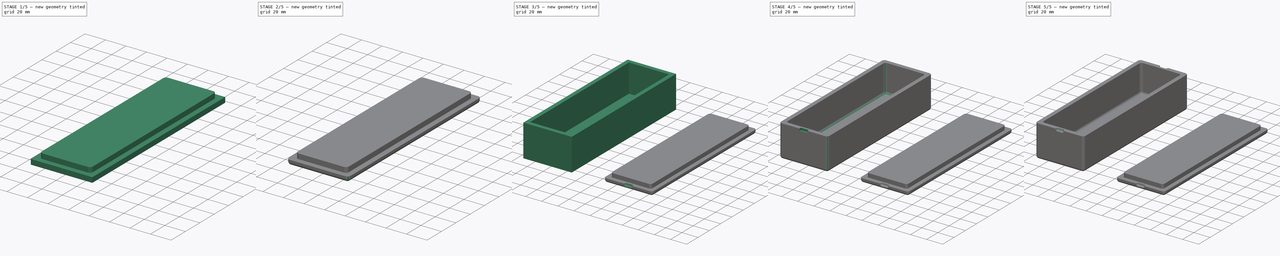
[diagram: build sequence overview — one tinted view per stage of 5, left to right]
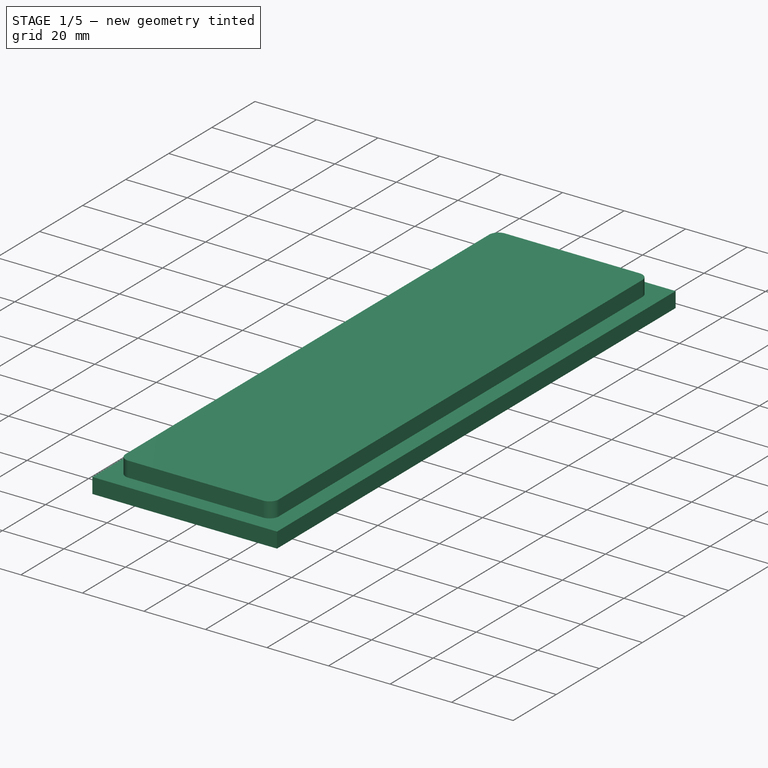
[diagram: stage 1 of 5 — iso view after this stage's code; geometry added in this stage tinted green]
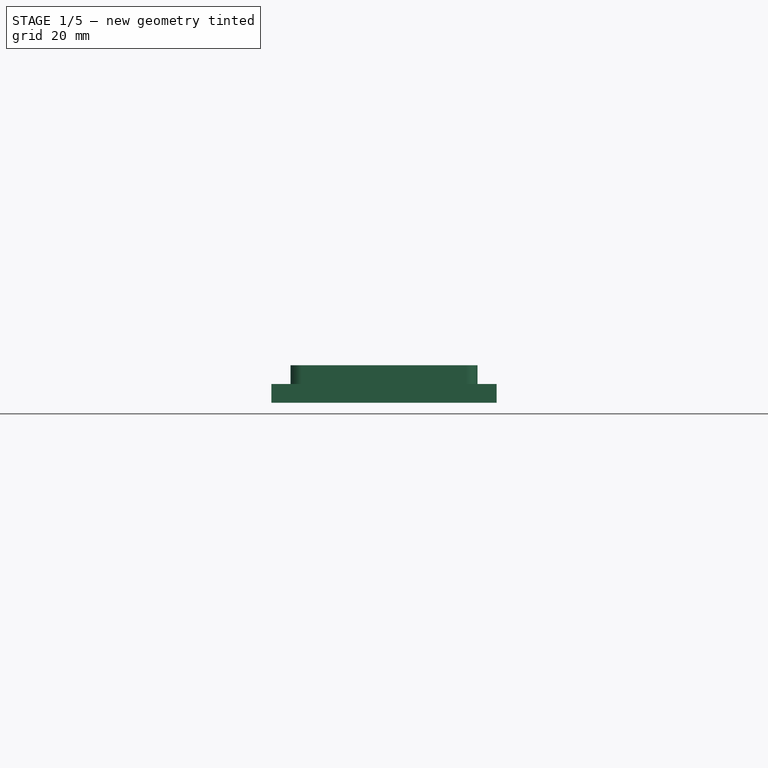
[diagram: stage 1 of 5 — front view after this stage's code; geometry added in this stage tinted green]
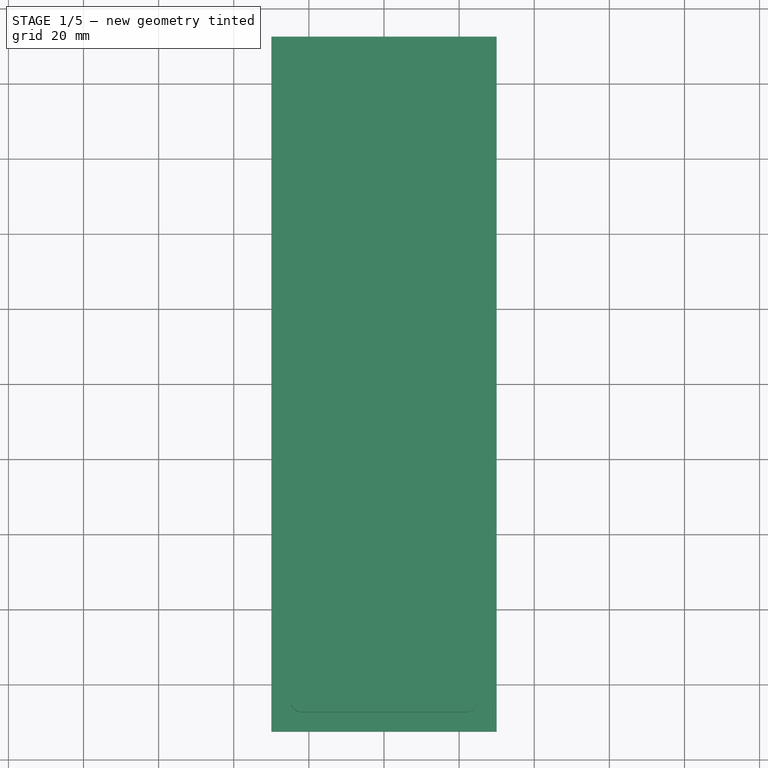
[diagram: stage 1 of 5 — top view after this stage's code; geometry added in this stage tinted green]
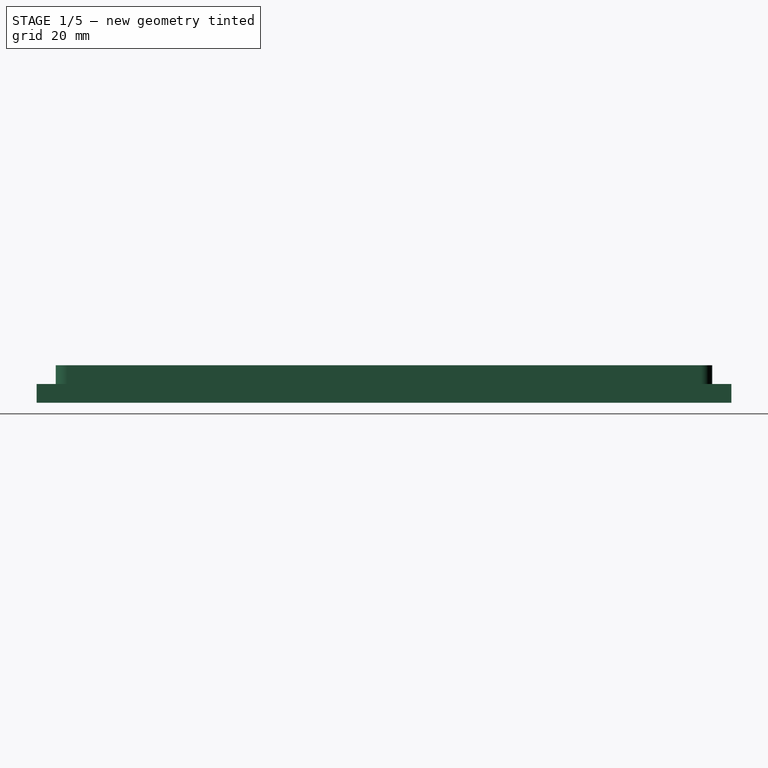
[diagram: stage 1 of 5 — right view after this stage's code; geometry added in this stage tinted green]
FCSTD DOCUMENT  (FreeCAD 1.0R39285 (Git))
Label: BookmarkBox
License: All rights reserved
LicenseURL: https://en.wikipedia.org/wiki/All_rights_reserved
objects: Sketcher::SketchObject×8, PartDesign::Fillet×8, PartDesign::Pocket×5, PartDesign::Pad×3, PartDesign::Body×2
note: 66 computed .brp shape members not serialized (recipe doc carries the construction recipe); baked Part::Feature solids carry a one-line shape summary decoded from their .brp

FEATURE [PartDesign::Body] Body  label="Box"
  AllowCompound = false
  Group = -> [Sketch001,Pad,Sketch,Pocket,Fillet,Fillet001,Sketch002,Pocket001,Fillet002,Sketch003,Pocket002,Fillet003]
  Origin = -> Origin
  Tip = -> Fillet003
FEATURE [Sketcher::SketchObject] Sketch004
  ArcFitTolerance = 1e-06
  AttachmentSupport = -> [XY_Plane001]
  FullyConstrained = true
  MakeInternals = false
  MapMode = 5
  sketch-geometry (5):
    g0: LineSegment StartX=70 StartY=92.5 StartZ=0 EndX=70 EndY=-92.5 EndZ=0
    g1: LineSegment StartX=70 StartY=-92.5 StartZ=0 EndX=130 EndY=-92.5 EndZ=0
    g2: LineSegment StartX=130 StartY=-92.5 StartZ=0 EndX=130 EndY=92.5 EndZ=0
    g3: LineSegment StartX=130 StartY=92.5 StartZ=0 EndX=70 EndY=92.5 EndZ=0
    g4: GeomPoint [constr] X=100 Y=0 Z=0
  constraints (13):
    c: Coincident(g0,g1)
    c: Coincident(g1,g2)
    c: Coincident(g2,g3)
    c: Coincident(g3,g0)
    c: Vertical(g0)
    c: Vertical(g2)
    c: Horizontal(g1)
    c: Horizontal(g3)
    c: Symmetric(g2,g0,g4)
    c: PointOnObject(g4,g-1)
    c: DistanceY(g2,g2) = 185
    c: DistanceX(g1,g1) = 60
    c: Distance(g4,g-2) = 100
FEATURE [PartDesign::Pad] Pad001
  Direction = (0,0,1)
  Length = 5
  Length2 = 10
  Profile = -> Sketch004
  ReferenceAxis = -> Sketch004 [N_Axis]
  Refine = true
  Suppressed = false
  Type = 0
FEATURE [Sketcher::SketchObject] Sketch005
  ArcFitTolerance = 1e-06
  AttachmentSupport = -> [Pad001]
  ExternalGeometry = -> [Pad001]
  FullyConstrained = true
  MakeInternals = false
  MapMode = 5
  Placement = pos=(0,0,5) rot=(0,0,1;0rad)
  sketch-geometry (5):
    g0: LineSegment StartX=75.1 StartY=87.4 StartZ=0 EndX=75.1 EndY=-87.4 EndZ=0
    g1: LineSegment StartX=75.1 StartY=-87.4 StartZ=0 EndX=124.9 EndY=-87.4 EndZ=0
    g2: LineSegment StartX=124.9 StartY=-87.4 StartZ=0 EndX=124.9 EndY=87.4 EndZ=0
    g3: LineSegment StartX=124.9 StartY=87.4 StartZ=0 EndX=75.1 EndY=87.4 EndZ=0
    g4: GeomPoint [constr] X=100 Y=-1.16e-14 Z=0
  constraints (13):
    c: Coincident(g0,g1)
    c: Coincident(g1,g2)
    c: Coincident(g2,g3)
    c: Coincident(g3,g0)
    c: Vertical(g0)
    c: Vertical(g2)
    c: Horizontal(g1)
    c: Horizontal(g3)
    c: Symmetric(g2,g0,g4)
    c: Distance(g-5,g2) = 5.1
    c: Distance(g-6,g1) = 5.1
    c: Distance(g-4,g0) = 5.1
    c: Distance(g-3,g3) = 5.1
FEATURE [PartDesign::Pad] Pad002
  BaseFeature = -> Pad001
  Direction = (0,0,1)
  Length = 5
  Length2 = 10
  Profile = -> Sketch005
  ReferenceAxis = -> Sketch005 [N_Axis]
  Refine = true
  Suppressed = false
  Type = 0
FEATURE [PartDesign::Fillet] Fillet004
  Base = -> Pad002 [Edge18,Edge20,Edge22,Edge17]
  BaseFeature = -> Pad002
  Radius = 3
  Refine = true
  SupportTransform = false
  Suppressed = false
  UseAllEdges = false
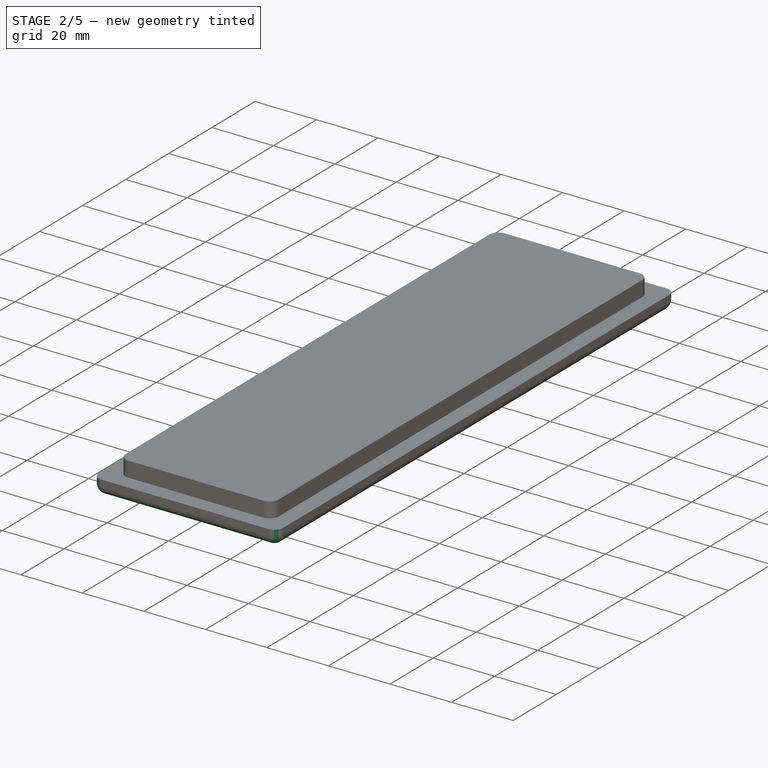
[diagram: stage 2 of 5 — iso view after this stage's code; geometry added in this stage tinted green]
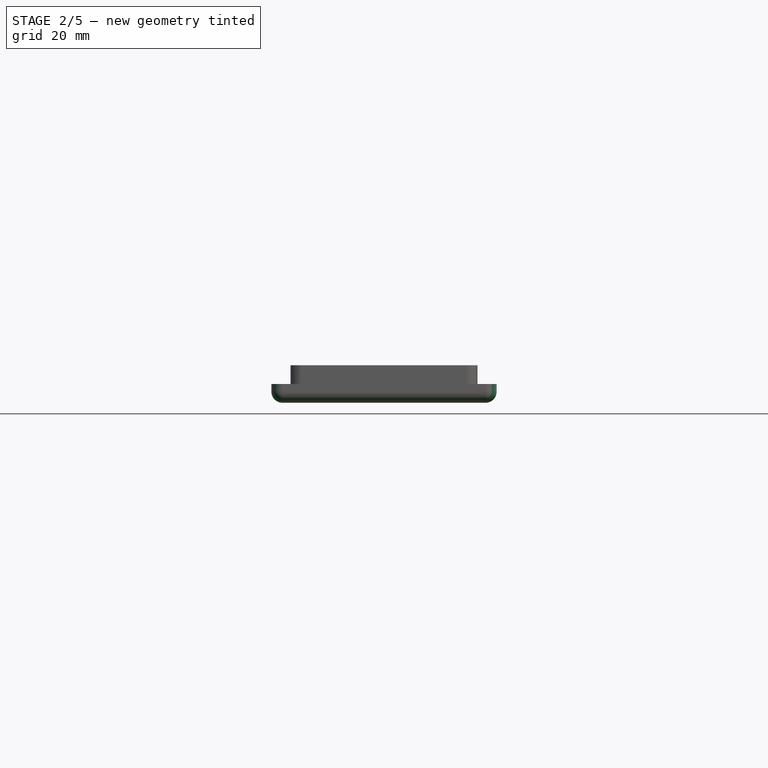
[diagram: stage 2 of 5 — front view after this stage's code; geometry added in this stage tinted green]
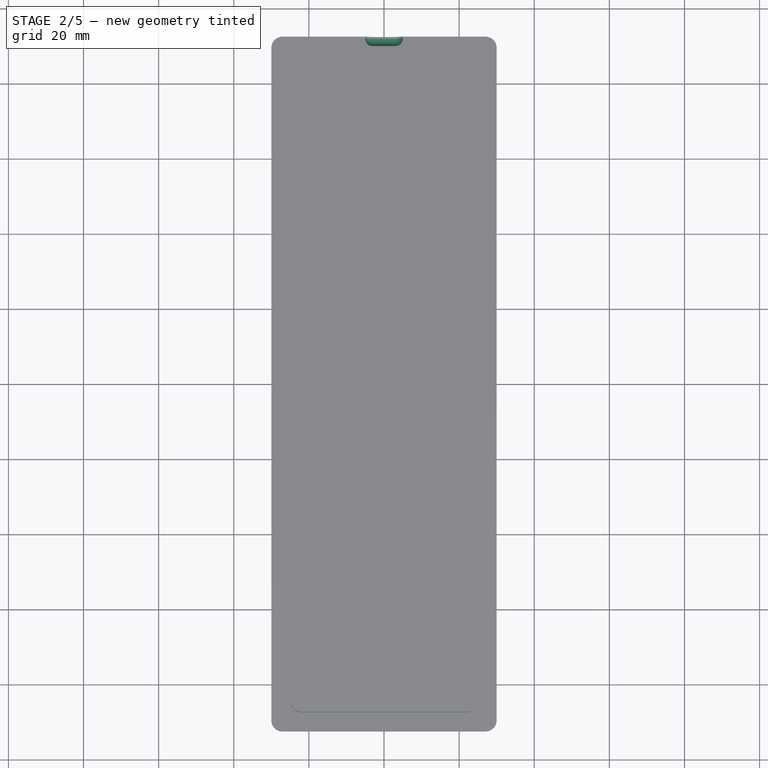
[diagram: stage 2 of 5 — top view after this stage's code; geometry added in this stage tinted green]
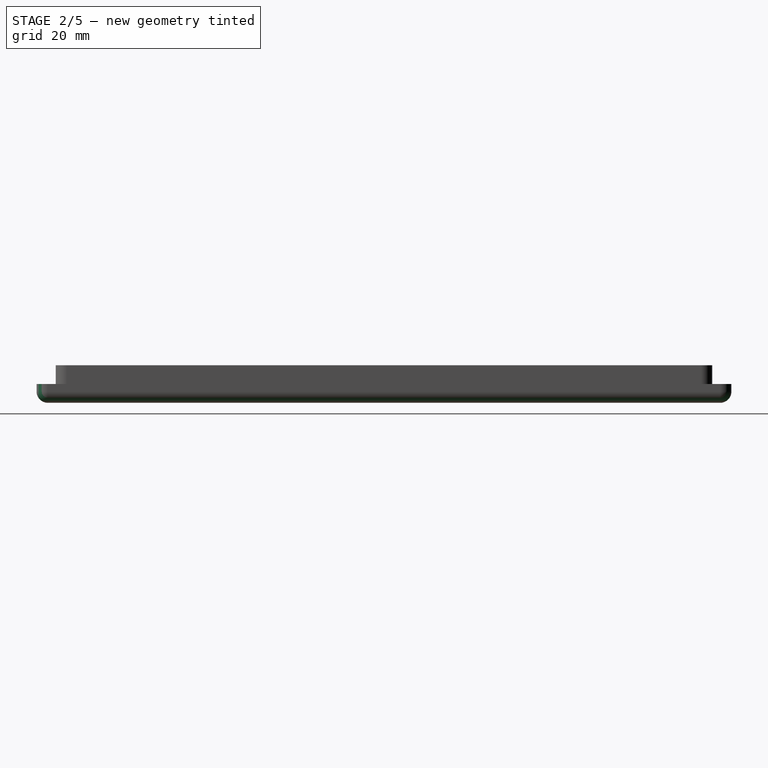
[diagram: stage 2 of 5 — right view after this stage's code; geometry added in this stage tinted green]
FEATURE [PartDesign::Fillet] Fillet005
  Base = -> Fillet004 [Edge32,Edge29,Edge30,Edge34,Edge35,Edge31,Edge36,Edge33]
  BaseFeature = -> Fillet004
  Radius = 3
  Refine = true
  SupportTransform = false
  Suppressed = false
  UseAllEdges = false
FEATURE [Sketcher::SketchObject] Sketch006
  ArcFitTolerance = 1e-06
  AttachmentSupport = -> [Fillet005]
  ExternalGeometry = -> [Fillet005]
  FullyConstrained = true
  MakeInternals = false
  MapMode = 5
  Placement = pos=(0,92.5,0) rot=(0,0.707107,0.707107;3.14159rad)
  sketch-geometry (5):
    g0: LineSegment StartX=-105 StartY=7.5 StartZ=0 EndX=-105 EndY=2.5 EndZ=0
    g1: LineSegment StartX=-105 StartY=2.5 StartZ=0 EndX=-95 EndY=2.5 EndZ=0
    g2: LineSegment StartX=-95 StartY=2.5 StartZ=0 EndX=-95 EndY=7.5 EndZ=0
    g3: LineSegment StartX=-95 StartY=7.5 StartZ=0 EndX=-105 EndY=7.5 EndZ=0
    g4: GeomPoint [constr] X=-100 Y=5 Z=0
  constraints (12):
    c: Coincident(g0,g1)
    c: Coincident(g1,g2)
    c: Coincident(g2,g3)
    c: Coincident(g3,g0)
    c: Vertical(g0)
    c: Vertical(g2)
    c: Horizontal(g1)
    c: Horizontal(g3)
    c: Symmetric(g2,g0,g4)
    c: Symmetric(g-3,g-3,g4)
    c: DistanceX(g3,g3) = 10
    c: Distance(g0,g0) = 5
FEATURE [PartDesign::Pocket] Pocket003
  BaseFeature = -> Fillet005
  Direction = (0,-1,2e-16)
  Length = 2.5
  Length2 = 5
  Profile = -> Sketch006
  ReferenceAxis = -> Sketch006 [N_Axis]
  Refine = true
  Suppressed = false
  Type = 0
FEATURE [PartDesign::Fillet] Fillet006
  Base = -> Pocket003 [Edge33,Edge29,Edge30,Edge27,Edge28]
  BaseFeature = -> Pocket003
  Radius = 2
  Refine = true
  SupportTransform = false
  Suppressed = false
  UseAllEdges = false
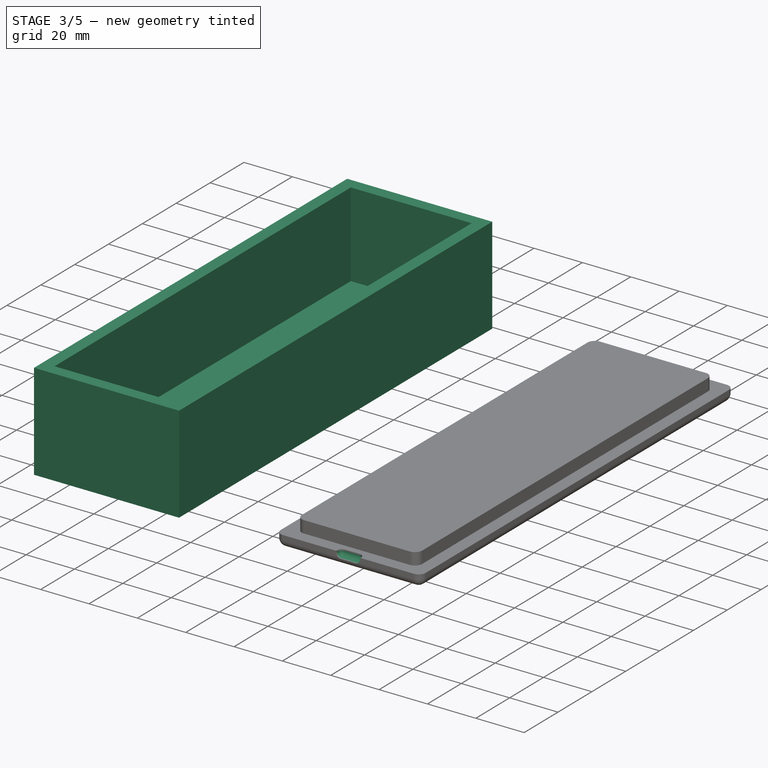
[diagram: stage 3 of 5 — iso view after this stage's code; geometry added in this stage tinted green]
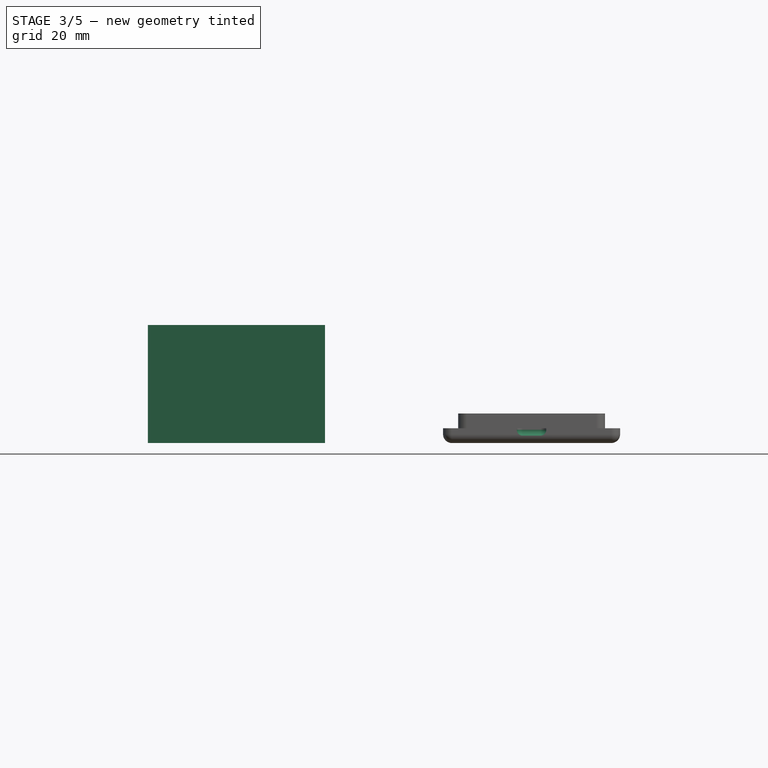
[diagram: stage 3 of 5 — front view after this stage's code; geometry added in this stage tinted green]
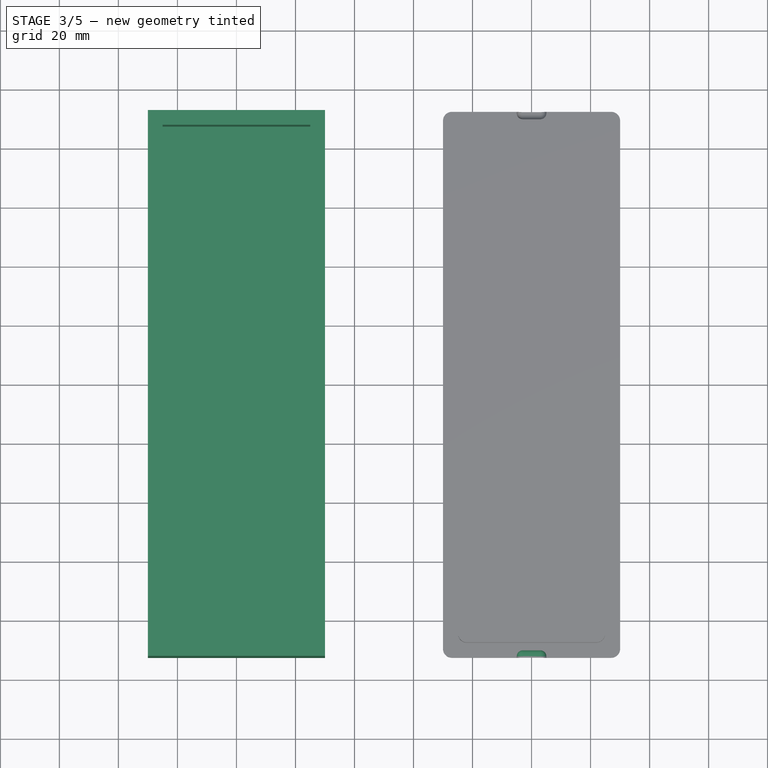
[diagram: stage 3 of 5 — top view after this stage's code; geometry added in this stage tinted green]
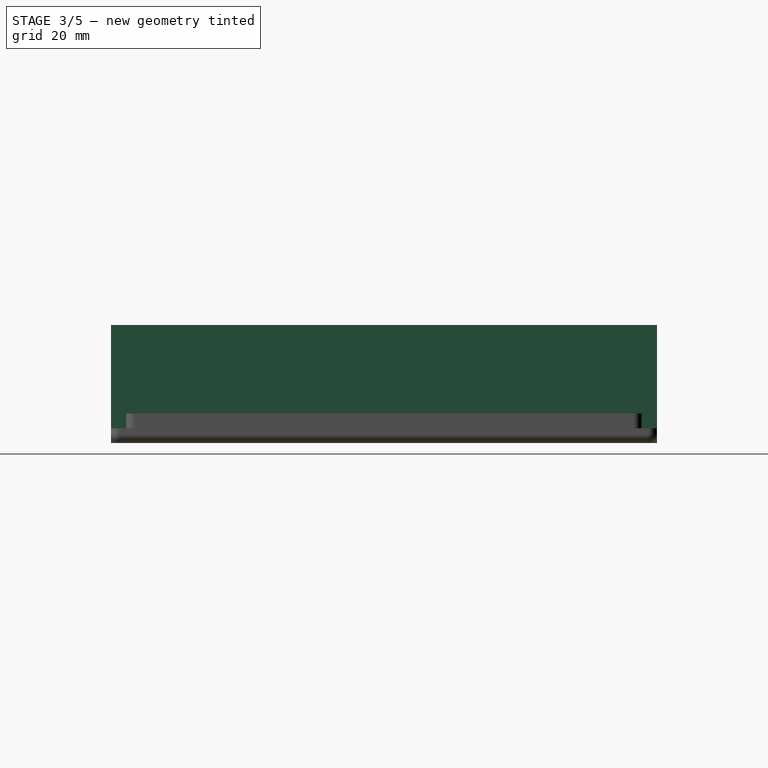
[diagram: stage 3 of 5 — right view after this stage's code; geometry added in this stage tinted green]
FEATURE [Sketcher::SketchObject] Sketch001
  ArcFitTolerance = 1e-06
  AttachmentSupport = -> [XY_Plane]
  FullyConstrained = true
  MakeInternals = false
  MapMode = 5
  sketch-geometry (5):
    g0: LineSegment StartX=-30 StartY=92.5 StartZ=0 EndX=-30 EndY=-92.5 EndZ=0
    g1: LineSegment StartX=-30 StartY=-92.5 StartZ=0 EndX=30 EndY=-92.5 EndZ=0
    g2: LineSegment StartX=30 StartY=-92.5 StartZ=0 EndX=30 EndY=92.5 EndZ=0
    g3: LineSegment StartX=30 StartY=92.5 StartZ=0 EndX=-30 EndY=92.5 EndZ=0
    g4: GeomPoint [constr] X=0 Y=1e-16 Z=0
  constraints (12):
    c: Coincident(g0,g1)
    c: Coincident(g1,g2)
    c: Coincident(g2,g3)
    c: Coincident(g3,g0)
    c: Vertical(g0)
    c: Vertical(g2)
    c: Horizontal(g1)
    c: Horizontal(g3)
    c: Symmetric(g2,g0,g4)
    c: Coincident(g4,g-1)
    c: DistanceY(g0,g0) = 185
    c: DistanceX(g3,g3) = 60
FEATURE [PartDesign::Pad] Pad
  Direction = (0,0,1)
  Length = 40
  Length2 = 10
  Profile = -> Sketch001
  ReferenceAxis = -> Sketch001 [N_Axis]
  Refine = true
  Suppressed = false
  Type = 0
FEATURE [Sketcher::SketchObject] Sketch
  ArcFitTolerance = 1e-06
  AttachmentSupport = -> [Pad]
  ExternalGeometry = -> [Pad]
  FullyConstrained = true
  MakeInternals = false
  MapMode = 5
  Placement = pos=(0,0,40) rot=(0,0,1;0rad)
  sketch-geometry (5):
    g0: LineSegment StartX=-25 StartY=87.5 StartZ=0 EndX=-25 EndY=-87.5 EndZ=0
    g1: LineSegment StartX=-25 StartY=-87.5 StartZ=0 EndX=25 EndY=-87.5 EndZ=0
    g2: LineSegment StartX=25 StartY=-87.5 StartZ=0 EndX=25 EndY=87.5 EndZ=0
    g3: LineSegment StartX=25 StartY=87.5 StartZ=0 EndX=-25 EndY=87.5 EndZ=0
    g4: GeomPoint [constr] X=1.7e-15 Y=-1.6e-15 Z=0
  constraints (13):
    c: Coincident(g0,g1)
    c: Coincident(g1,g2)
    c: Coincident(g2,g3)
    c: Coincident(g3,g0)
    c: Vertical(g0)
    c: Vertical(g2)
    c: Horizontal(g1)
    c: Horizontal(g3)
    c: Symmetric(g2,g0,g4)
    c: Distance(g-5,g0) = 5
    c: Distance(g-4,g3) = 5
    c: Distance(g-3,g2) = 5
    c: Distance(g-6,g1) = 5
FEATURE [PartDesign::Pocket] Pocket
  BaseFeature = -> Pad
  Direction = (0,0,-1)
  Length = 35
  Length2 = 5
  Profile = -> Sketch
  ReferenceAxis = -> Sketch [N_Axis]
  Refine = true
  Suppressed = false
  Type = 0
FEATURE [Sketcher::SketchObject] Sketch007
  ArcFitTolerance = 1e-06
  AttachmentSupport = -> [Fillet006]
  ExternalGeometry = -> [Fillet006]
  FullyConstrained = true
  MakeInternals = false
  MapMode = 5
  Placement = pos=(0,-92.5,0) rot=(1,0,0;1.5708rad)
  sketch-geometry (5):
    g0: LineSegment StartX=95 StartY=7.5 StartZ=0 EndX=95 EndY=2.5 EndZ=0
    g1: LineSegment StartX=95 StartY=2.5 StartZ=0 EndX=105 EndY=2.5 EndZ=0
    g2: LineSegment StartX=105 StartY=2.5 StartZ=0 EndX=105 EndY=7.5 EndZ=0
    g3: LineSegment StartX=105 StartY=7.5 StartZ=0 EndX=95 EndY=7.5 EndZ=0
    g4: GeomPoint [constr] X=100 Y=5 Z=0
  constraints (12):
    c: Coincident(g0,g1)
    c: Coincident(g1,g2)
    c: Coincident(g2,g3)
    c: Coincident(g3,g0)
    c: Vertical(g0)
    c: Vertical(g2)
    c: Horizontal(g1)
    c: Horizontal(g3)
    c: Symmetric(g2,g0,g4)
    c: Symmetric(g-3,g-3,g4)
    c: DistanceX(g3,g3) = 10
    c: Distance(g0,g0) = 5
FEATURE [PartDesign::Pocket] Pocket004
  BaseFeature = -> Fillet006
  Direction = (0,1,-2e-16)
  Length = 2.5
  Length2 = 5
  Profile = -> Sketch007
  ReferenceAxis = -> Sketch007 [N_Axis]
  Refine = true
  Suppressed = false
  Type = 0
FEATURE [PartDesign::Fillet] Fillet007
  Base = -> Pocket004 [Edge50,Edge54,Edge51,Edge48,Edge49]
  BaseFeature = -> Pocket004
  Radius = 2
  Refine = true
  SupportTransform = false
  Suppressed = false
  UseAllEdges = false
FEATURE [PartDesign::Body] Body001  label="Lid"
  AllowCompound = false
  Group = -> [Sketch004,Pad001,Sketch005,Pad002,Fillet004,Fillet005,Sketch006,Pocket003,Fillet006,Sketch007,Pocket004,Fillet007]
  Origin = -> Origin001
  Tip = -> Fillet007
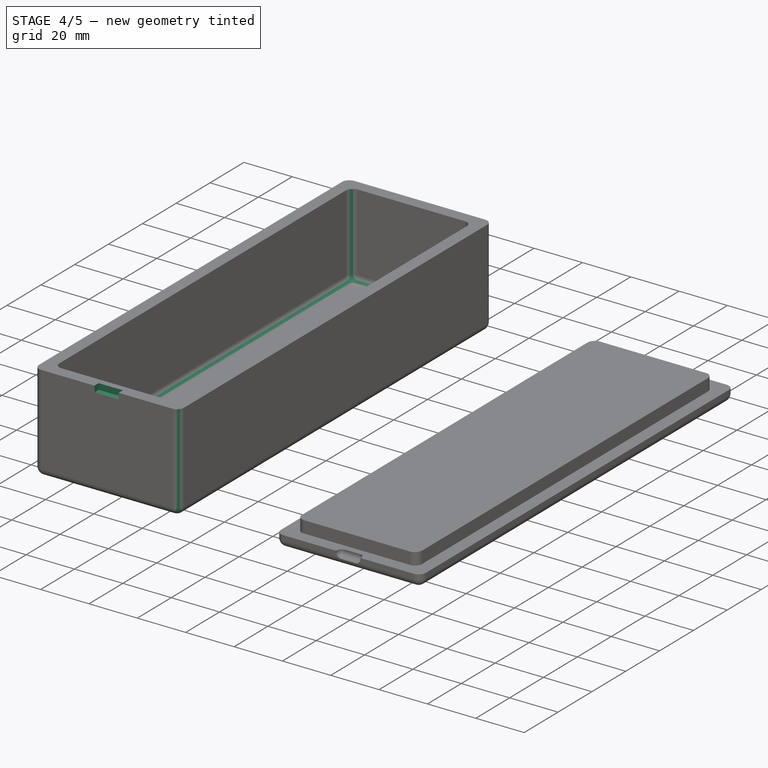
[diagram: stage 4 of 5 — iso view after this stage's code; geometry added in this stage tinted green]
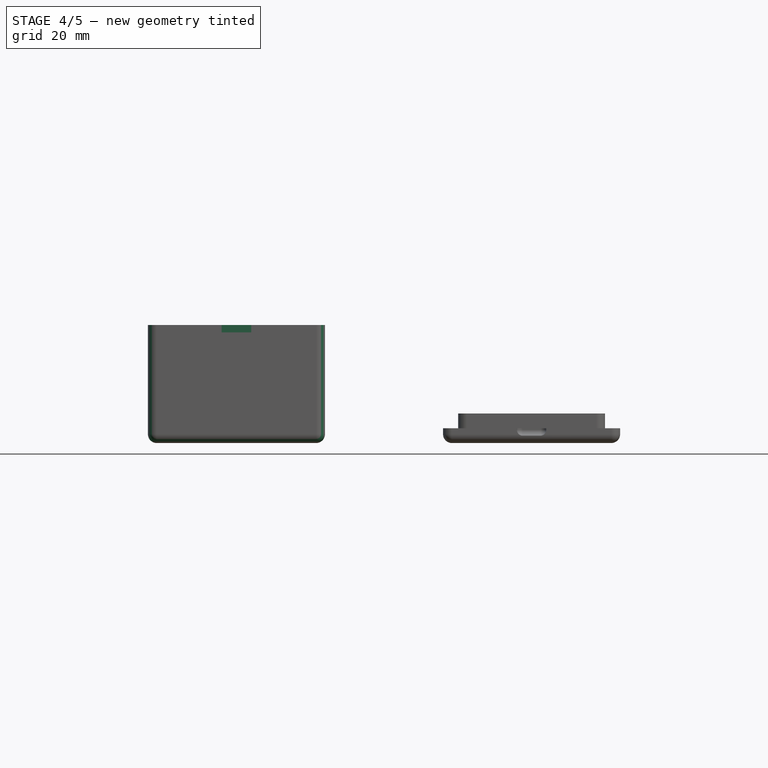
[diagram: stage 4 of 5 — front view after this stage's code; geometry added in this stage tinted green]
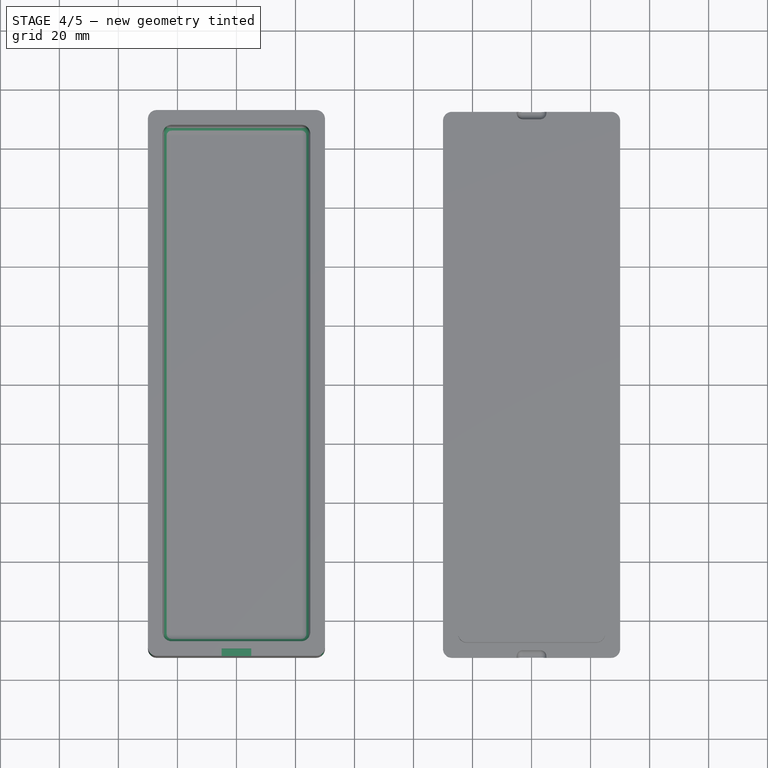
[diagram: stage 4 of 5 — top view after this stage's code; geometry added in this stage tinted green]
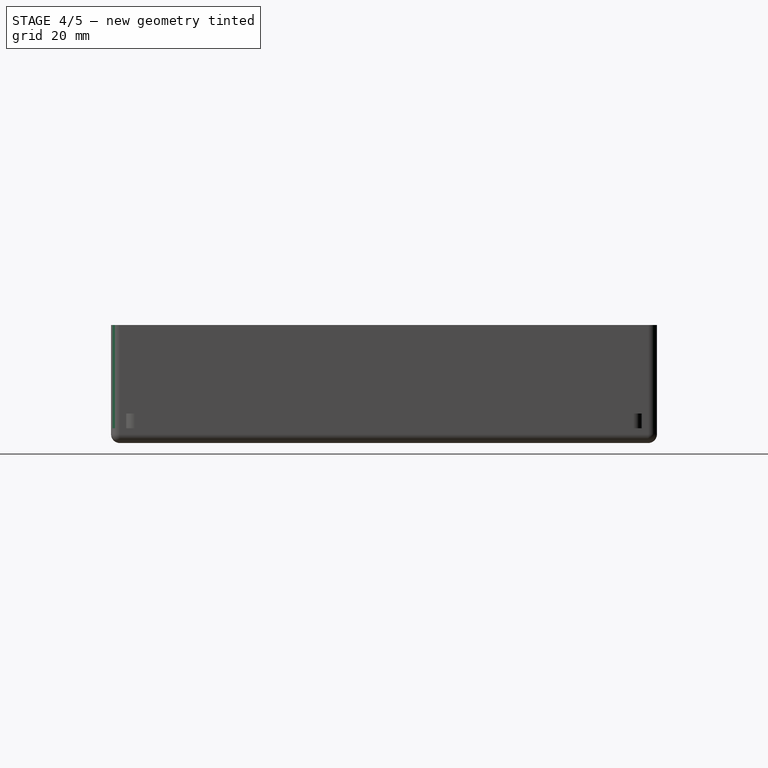
[diagram: stage 4 of 5 — right view after this stage's code; geometry added in this stage tinted green]
FEATURE [PartDesign::Fillet] Fillet
  Base = -> Pocket [Edge8,Edge5,Edge11,Edge6,Edge1,Edge3,Edge2,Edge9]
  BaseFeature = -> Pocket
  Radius = 3
  Refine = true
  SupportTransform = false
  Suppressed = false
  UseAllEdges = false
FEATURE [PartDesign::Fillet] Fillet001
  Base = -> Fillet [Edge39,Edge34,Edge36,Edge38,Edge32,Edge37,Edge33,Edge35]
  BaseFeature = -> Fillet
  Radius = 3
  Refine = true
  SupportTransform = false
  Suppressed = false
  UseAllEdges = false
FEATURE [Sketcher::SketchObject] Sketch002
  ArcFitTolerance = 1e-06
  AttachmentSupport = -> [Fillet001]
  ExternalGeometry = -> [Fillet001]
  FullyConstrained = true
  MakeInternals = false
  MapMode = 5
  Placement = pos=(0,-92.5,0) rot=(1,0,0;1.5708rad)
  sketch-geometry (5):
    g0: LineSegment StartX=-5 StartY=37.5 StartZ=0 EndX=-5 EndY=42.5 EndZ=0
    g1: LineSegment StartX=-5 StartY=42.5 StartZ=0 EndX=5 EndY=42.5 EndZ=0
    g2: LineSegment StartX=5 StartY=42.5 StartZ=0 EndX=5 EndY=37.5 EndZ=0
    g3: LineSegment StartX=5 StartY=37.5 StartZ=0 EndX=-5 EndY=37.5 EndZ=0
    g4: GeomPoint [constr] X=0 Y=40 Z=0
  constraints (13):
    c: Coincident(g0,g1)
    c: Coincident(g1,g2)
    c: Coincident(g2,g3)
    c: Coincident(g3,g0)
    c: Vertical(g0)
    c: Vertical(g2)
    c: Horizontal(g1)
    c: Horizontal(g3)
    c: Symmetric(g2,g0,g4)
    c: PointOnObject(g4,g-2)
    c: PointOnObject(g4,g-3)
    c: Distance(g1,g1) = 10
    c: Distance(g0,g0) = 5
FEATURE [PartDesign::Pocket] Pocket001
  BaseFeature = -> Fillet001
  Direction = (0,1,-2e-16)
  Length = 2.5
  Length2 = 5
  Profile = -> Sketch002
  ReferenceAxis = -> Sketch002 [N_Axis]
  Refine = true
  Suppressed = false
  Type = 0
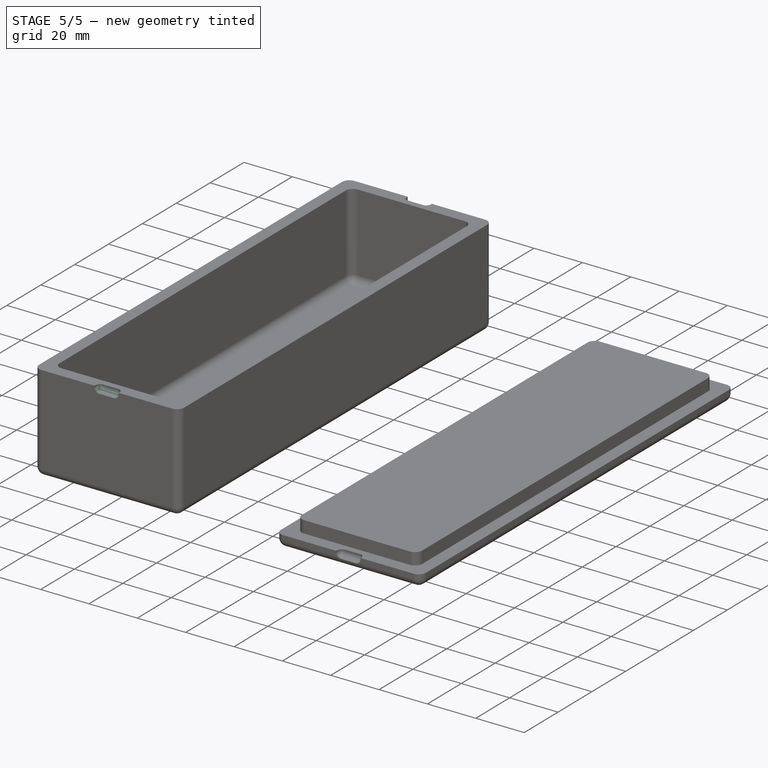
[diagram: stage 5 of 5 — iso view after this stage's code; geometry added in this stage tinted green]
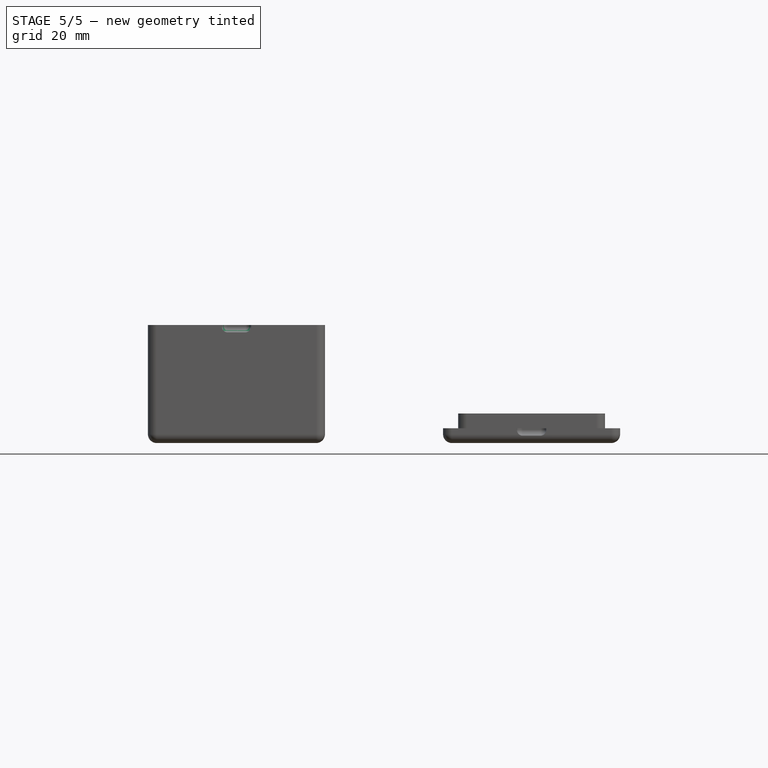
[diagram: stage 5 of 5 — front view after this stage's code; geometry added in this stage tinted green]
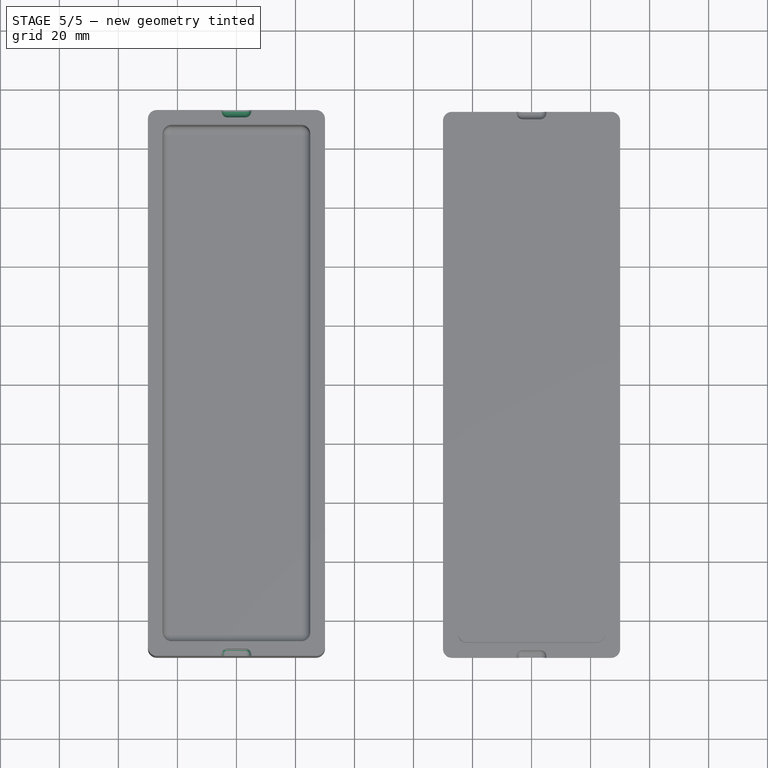
[diagram: stage 5 of 5 — top view after this stage's code; geometry added in this stage tinted green]
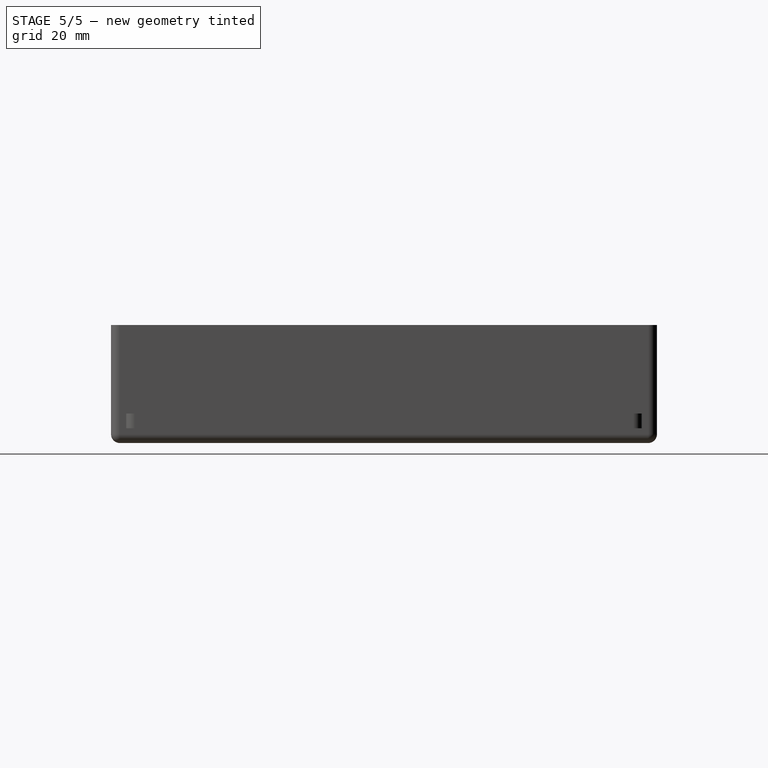
[diagram: stage 5 of 5 — right view after this stage's code; geometry added in this stage tinted green]
FEATURE [PartDesign::Fillet] Fillet002
  Base = -> Pocket001 [Edge40,Edge41,Edge39,Edge38,Edge37]
  BaseFeature = -> Pocket001
  Radius = 2
  Refine = true
  SupportTransform = false
  Suppressed = false
  UseAllEdges = false
FEATURE [Sketcher::SketchObject] Sketch003
  ArcFitTolerance = 1e-06
  AttachmentSupport = -> [Fillet002]
  ExternalGeometry = -> [Fillet002]
  FullyConstrained = true
  MakeInternals = false
  MapMode = 5
  Placement = pos=(0,92.5,0) rot=(0,0.707107,0.707107;3.14159rad)
  sketch-geometry (5):
    g0: LineSegment StartX=-5 StartY=37.5 StartZ=0 EndX=-5 EndY=42.5 EndZ=0
    g1: LineSegment StartX=-5 StartY=42.5 StartZ=0 EndX=5 EndY=42.5 EndZ=0
    g2: LineSegment StartX=5 StartY=42.5 StartZ=0 EndX=5 EndY=37.5 EndZ=0
    g3: LineSegment StartX=5 StartY=37.5 StartZ=0 EndX=-5 EndY=37.5 EndZ=0
    g4: GeomPoint [constr] X=0 Y=40 Z=0
  constraints (13):
    c: Coincident(g0,g1)
    c: Coincident(g1,g2)
    c: Coincident(g2,g3)
    c: Coincident(g3,g0)
    c: Vertical(g0)
    c: Vertical(g2)
    c: Horizontal(g1)
    c: Horizontal(g3)
    c: Symmetric(g2,g0,g4)
    c: PointOnObject(g4,g-2)
    c: PointOnObject(g4,g-3)
    c: Distance(g1,g1) = 10
    c: Distance(g0,g0) = 5
FEATURE [PartDesign::Pocket] Pocket002
  BaseFeature = -> Fillet002
  Direction = (0,-1,2e-16)
  Length = 2.5
  Length2 = 5
  Profile = -> Sketch003
  ReferenceAxis = -> Sketch003 [N_Axis]
  Refine = true
  Suppressed = false
  Type = 0
FEATURE [PartDesign::Fillet] Fillet003
  Base = -> Pocket002 [Edge58,Edge56,Edge57,Edge55,Edge54]
  BaseFeature = -> Pocket002
  Radius = 2
  Refine = true
  SupportTransform = false
  Suppressed = false
  UseAllEdges = false
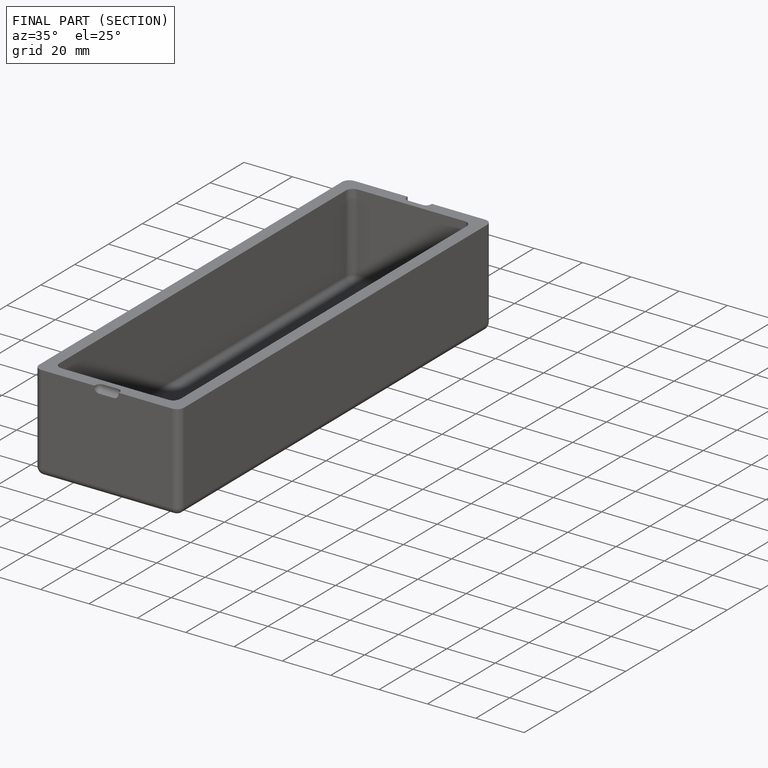
[diagram: finished part — half-section view (interior)]
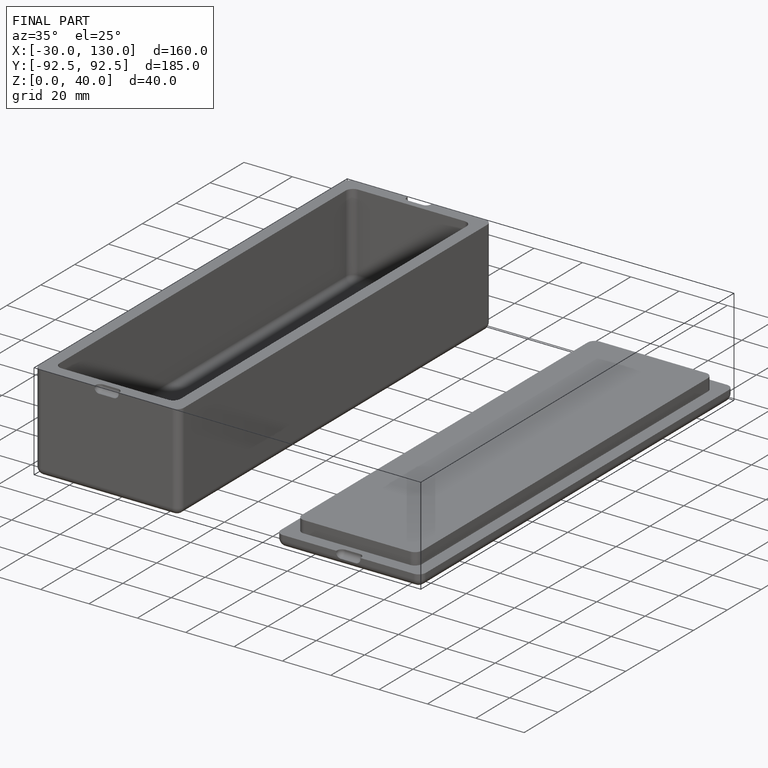
[diagram: finished part — iso view with bounding-box wireframe]
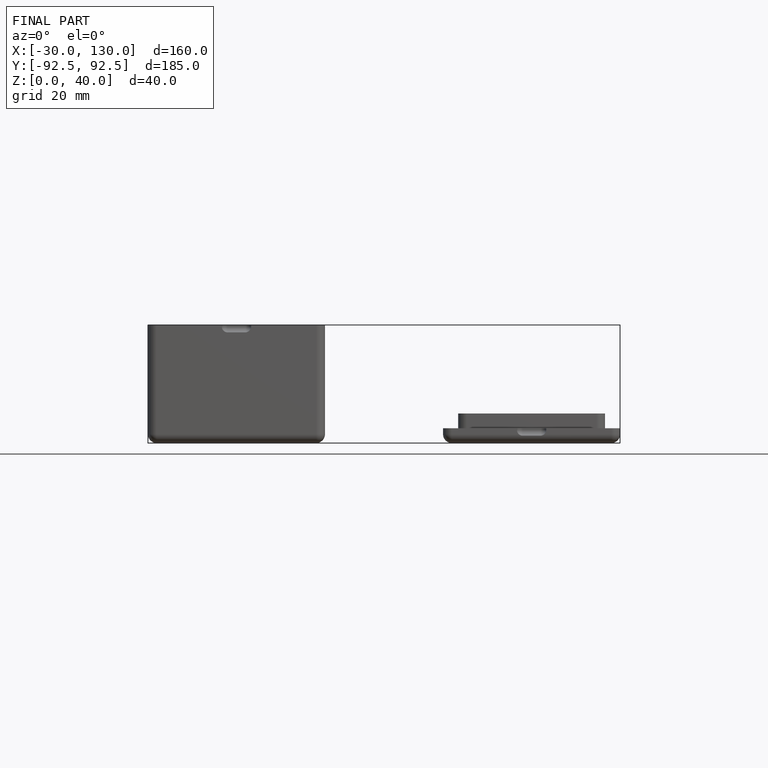
[diagram: finished part — front view with bounding-box wireframe]
